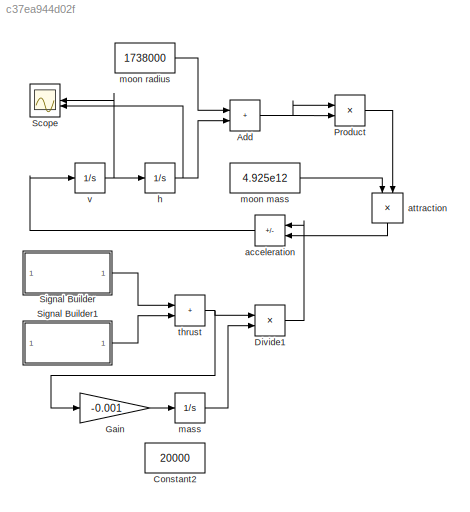
MODEL slx_c37ea944d02f
KIND model
CONFIG AbsTol = auto
CONFIG EnableMultiTasking = off
CONFIG FixedStep = 0.01
CONFIG MaxStep = auto
CONFIG MinStep = auto
CONFIG RelTol = 1e-3
CONFIG SampleTimeConstraint = Unconstrained
CONFIG SolverName = ode4
CONFIG StartTime = 0.0
CONFIG StopTime = 100
BLOCK [Sum] Add
  IconShape = rectangular
BLOCK [Constant] Constant2
  Value = 20000
BLOCK [Product] Divide1
  Inputs = */
BLOCK [Gain] Gain
  Gain = -0.001
BLOCK [Product] Product
BLOCK [Scope] Scope
  Floating = off
  NumInputPorts = 2
  ScopeSpecificationString = Simulink.scopes.TimeScopeBlockCfg('CurrentConfiguration', extmgr.ConfigurationSet(extmgr.Configuration('Core','General UI',true),extmgr.Configuration('Core','Source UI',true),extmgr.Configuration('Sources','WiredSimulink',true),extmgr.Configuration('Visuals','Time Domain',true,'SerializedDisplays',{struct('MinYLimReal','-110.9899','MaxYLimReal','1045.62805','YLabelReal','','MinYLimMag',' 0.00000',...<+1766ch>
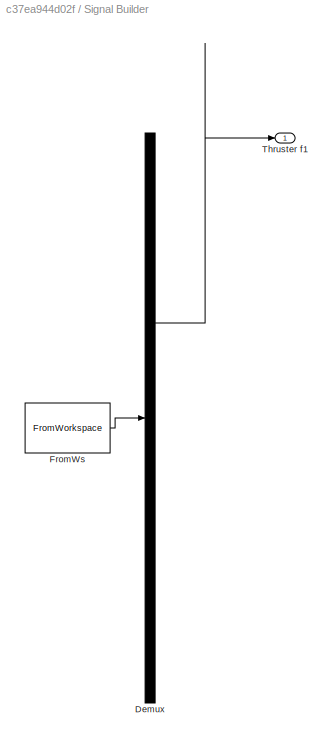
BLOCK [SubSystem] Signal Builder
  ClipboardFcn = sigbuilder_block('clipboard');
  CloseFcn = sigbuilder_block('close');
  ContinueFcn = sigbuilder_block('continue');
  CopyFcn = sigbuilder_block('copy');
  DeleteFcn = sigbuilder_block('delete');
  LoadFcn = sigbuilder_block('load');
  MaskHideContents = on
  ModelCloseFcn = sigbuilder_block('modelClose');
  NameChangeFcn = sigbuilder_block('namechange');
  OpenFcn = sigbuilder_block('open',[437.6 199.2 550.4 400 ]);
  PauseFcn = sigbuilder_block('pause');
  PreSaveFcn = sigbuilder_block('preSave');
  StartFcn = sigbuilder_block('start');
  StopFcn = sigbuilder_block('stop');
  Tag = STV Subsys
BLOCK [Demux] Signal Builder/Demux
  DisplayOption = none
  Outputs = 1
  Tag = STV Demux
BLOCK [FromWorkspace] Signal Builder/FromWs
  Tag = STV FromWs
  VariableName = tuvar
BLOCK [Outport] Signal Builder/Thruster f1
  Tag = STV Outport
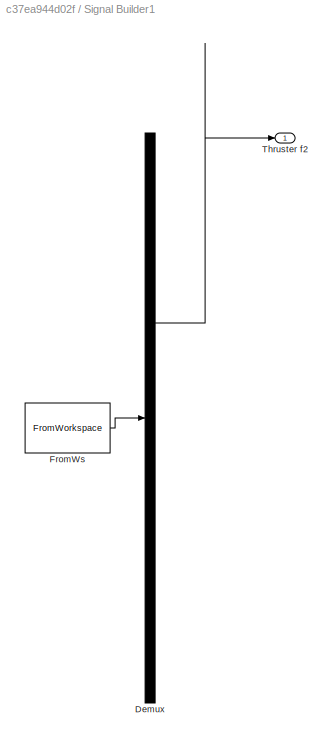
BLOCK [SubSystem] Signal Builder1
  ClipboardFcn = sigbuilder_block('clipboard');
  CloseFcn = sigbuilder_block('close');
  ContinueFcn = sigbuilder_block('continue');
  CopyFcn = sigbuilder_block('copy');
  DeleteFcn = sigbuilder_block('delete');
  LoadFcn = sigbuilder_block('load');
  MaskHideContents = on
  ModelCloseFcn = sigbuilder_block('modelClose');
  NameChangeFcn = sigbuilder_block('namechange');
  OpenFcn = sigbuilder_block('open',[437.6 186 550.4 400.2 ]);
  PauseFcn = sigbuilder_block('pause');
  PreSaveFcn = sigbuilder_block('preSave');
  StartFcn = sigbuilder_block('start');
  StopFcn = sigbuilder_block('stop');
  Tag = STV Subsys
BLOCK [Demux] Signal Builder1/Demux
  DisplayOption = none
  Outputs = 1
  Tag = STV Demux
BLOCK [FromWorkspace] Signal Builder1/FromWs
  Tag = STV FromWs
  VariableName = tuvar
BLOCK [Outport] Signal Builder1/Thruster f2
  Tag = STV Outport
BLOCK [Sum] acceleration
  IconShape = rectangular
  Inputs = +-
BLOCK [Product] attraction
  Inputs = */
  NameLocation = left
BLOCK [Integrator] h
  InitialCondition = 1000
BLOCK [Integrator] mass
  InitialCondition = 20000
BLOCK [Constant] moon mass
  Value = 4.925e12
BLOCK [Constant] moon radius
  Value = 1738000
BLOCK [Sum] thrust
  IconShape = rectangular
BLOCK [Integrator] v
  InitialCondition = -10
NET Add:1 -> Product:1, Product:2
LINE Divide1:1 -> acceleration:1
LINE Gain:1 -> mass:1
LINE Product:1 -> attraction:2
LINE Signal Builder1:1 -> thrust:2
LINE Signal Builder:1 -> thrust:1
LINE acceleration:1 -> v:1
LINE attraction:1 -> acceleration:2
NET h:1 -> Add:2, Scope:2
LINE mass:1 -> Divide1:2
LINE moon mass:1 -> attraction:1
LINE moon radius:1 -> Add:1
NET thrust:1 -> Divide1:1, Gain:1
NET v:1 -> Scope:1, h:1
note: NET lines group one-source signal fan-out (src -> all destinations, sorted); 1:1 wires keep LINE
